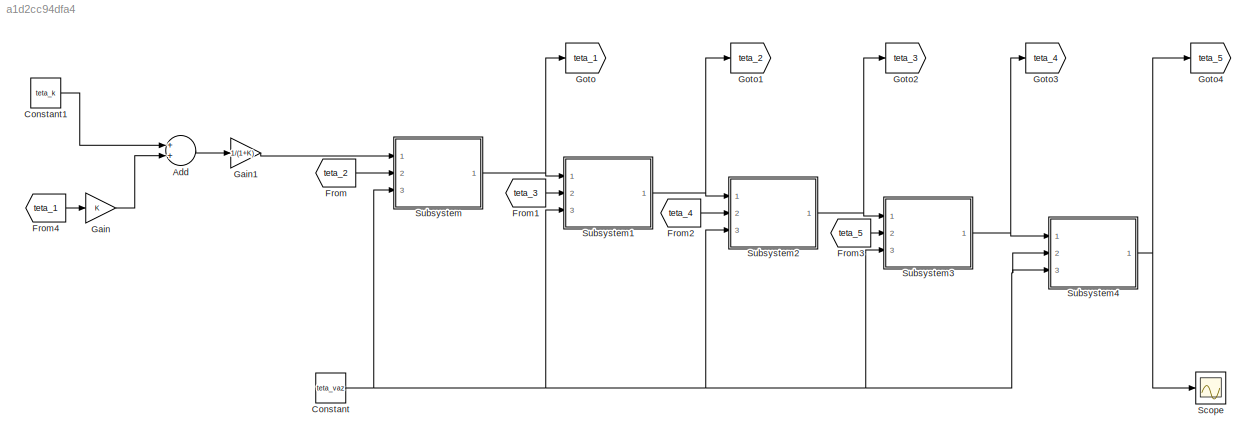
MODEL slx_a1d2cc94dfa4
KIND model
CONFIG AbsTol = auto
CONFIG FixedStep = auto
CONFIG MaxStep = auto
CONFIG MinStep = auto
CONFIG RelTol = 1e-3
CONFIG SampleTimeConstraint = Unconstrained
CONFIG Solver = ode45
CONFIG SolverMode = Auto
CONFIG SolverName = ode45
CONFIG StartTime = 0.0
CONFIG StopTime = 500
BLOCK [Sum] Add
  InputSameDT = off
  OutDataTypeStr = Inherit: Inherit via internal rule
  Ports = [2, 1]
  SaturateOnIntegerOverflow = off
BLOCK [Constant] Constant
  Value = teta_vaz
BLOCK [Constant] Constant1
  Value = teta_k
BLOCK [From] From
  GotoTag = teta_2
BLOCK [From] From1
  GotoTag = teta_3
BLOCK [From] From2
  GotoTag = teta_4
BLOCK [From] From3
  GotoTag = teta_5
BLOCK [From] From4
  GotoTag = teta_1
BLOCK [Gain] Gain
  Gain = K
  OutDataTypeStr = Inherit: Inherit via internal rule
  ParamDataTypeStr = Inherit: Inherit via internal rule
  SaturateOnIntegerOverflow = off
BLOCK [Gain] Gain1
  Gain = 1/(1+K)
  OutDataTypeStr = Inherit: Inherit via internal rule
  ParamDataTypeStr = Inherit: Inherit via internal rule
  SaturateOnIntegerOverflow = off
BLOCK [Goto] Goto
  GotoTag = teta_1
BLOCK [Goto] Goto1
  GotoTag = teta_2
BLOCK [Goto] Goto2
  GotoTag = teta_3
BLOCK [Goto] Goto3
  GotoTag = teta_4
BLOCK [Goto] Goto4
  GotoTag = teta_5
BLOCK [Scope] Scope
  DataFormat = StructureWithTime
  Floating = off
  LimitDataPoints = off
  NumInputPorts = 1
  Ports = [1]
  SampleTime = 0
  TimeRange = 500
  YMax = 65
  YMin = 30
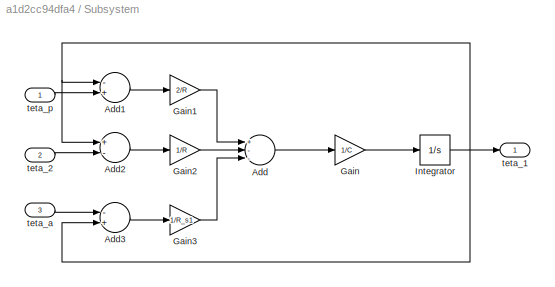
BLOCK [SubSystem] Subsystem
  Ports = [3, 1]
  RequestExecContextInheritance = off
BLOCK [Sum] Subsystem/Add
  InputSameDT = off
  Inputs = +--
  OutDataTypeStr = Inherit: Inherit via internal rule
  Ports = [3, 1]
  SaturateOnIntegerOverflow = off
BLOCK [Sum] Subsystem/Add1
  InputSameDT = off
  Inputs = -+
  OutDataTypeStr = Inherit: Inherit via internal rule
  Ports = [2, 1]
  SaturateOnIntegerOverflow = off
BLOCK [Sum] Subsystem/Add2
  InputSameDT = off
  Inputs = +-
  OutDataTypeStr = Inherit: Inherit via internal rule
  Ports = [2, 1]
  SaturateOnIntegerOverflow = off
BLOCK [Sum] Subsystem/Add3
  InputSameDT = off
  Inputs = -+
  OutDataTypeStr = Inherit: Inherit via internal rule
  Ports = [2, 1]
  SaturateOnIntegerOverflow = off
BLOCK [Gain] Subsystem/Gain
  Gain = 1/C
  OutDataTypeStr = Inherit: Inherit via internal rule
  ParamDataTypeStr = Inherit: Inherit via internal rule
  SaturateOnIntegerOverflow = off
BLOCK [Gain] Subsystem/Gain1
  Gain = 2/R
  OutDataTypeStr = Inherit: Inherit via internal rule
  ParamDataTypeStr = Inherit: Inherit via internal rule
  SaturateOnIntegerOverflow = off
BLOCK [Gain] Subsystem/Gain2
  Gain = 1/R
  OutDataTypeStr = Inherit: Inherit via internal rule
  ParamDataTypeStr = Inherit: Inherit via internal rule
  SaturateOnIntegerOverflow = off
BLOCK [Gain] Subsystem/Gain3
  Gain = 1/R_s1
  OutDataTypeStr = Inherit: Inherit via internal rule
  ParamDataTypeStr = Inherit: Inherit via internal rule
  SaturateOnIntegerOverflow = off
BLOCK [Integrator] Subsystem/Integrator
  InitialCondition = teta_vaz
  Ports = [1, 1]
BLOCK [Outport] Subsystem/teta_1
  IconDisplay = Port number
BLOCK [Inport] Subsystem/teta_2
  IconDisplay = Port number
  Port = 2
BLOCK [Inport] Subsystem/teta_a 
  IconDisplay = Port number
  Port = 3
BLOCK [Inport] Subsystem/teta_p
  IconDisplay = Port number
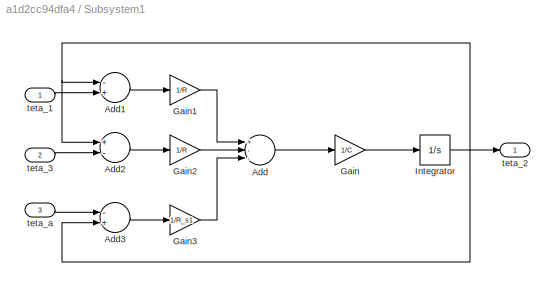
BLOCK [SubSystem] Subsystem1
  Ports = [3, 1]
  RequestExecContextInheritance = off
BLOCK [Sum] Subsystem1/Add
  InputSameDT = off
  Inputs = +--
  OutDataTypeStr = Inherit: Inherit via internal rule
  Ports = [3, 1]
  SaturateOnIntegerOverflow = off
BLOCK [Sum] Subsystem1/Add1
  InputSameDT = off
  Inputs = -+
  OutDataTypeStr = Inherit: Inherit via internal rule
  Ports = [2, 1]
  SaturateOnIntegerOverflow = off
BLOCK [Sum] Subsystem1/Add2
  InputSameDT = off
  Inputs = +-
  OutDataTypeStr = Inherit: Inherit via internal rule
  Ports = [2, 1]
  SaturateOnIntegerOverflow = off
BLOCK [Sum] Subsystem1/Add3
  InputSameDT = off
  Inputs = -+
  OutDataTypeStr = Inherit: Inherit via internal rule
  Ports = [2, 1]
  SaturateOnIntegerOverflow = off
BLOCK [Gain] Subsystem1/Gain
  Gain = 1/C
  OutDataTypeStr = Inherit: Inherit via internal rule
  ParamDataTypeStr = Inherit: Inherit via internal rule
  SaturateOnIntegerOverflow = off
BLOCK [Gain] Subsystem1/Gain1
  Gain = 1/R
  OutDataTypeStr = Inherit: Inherit via internal rule
  ParamDataTypeStr = Inherit: Inherit via internal rule
  SaturateOnIntegerOverflow = off
BLOCK [Gain] Subsystem1/Gain2
  Gain = 1/R
  OutDataTypeStr = Inherit: Inherit via internal rule
  ParamDataTypeStr = Inherit: Inherit via internal rule
  SaturateOnIntegerOverflow = off
BLOCK [Gain] Subsystem1/Gain3
  Gain = 1/R_s1
  OutDataTypeStr = Inherit: Inherit via internal rule
  ParamDataTypeStr = Inherit: Inherit via internal rule
  SaturateOnIntegerOverflow = off
BLOCK [Integrator] Subsystem1/Integrator
  InitialCondition = teta_vaz
  Ports = [1, 1]
BLOCK [Inport] Subsystem1/teta_1
  IconDisplay = Port number
BLOCK [Outport] Subsystem1/teta_2
  IconDisplay = Port number
BLOCK [Inport] Subsystem1/teta_3
  IconDisplay = Port number
  Port = 2
BLOCK [Inport] Subsystem1/teta_a 
  IconDisplay = Port number
  Port = 3
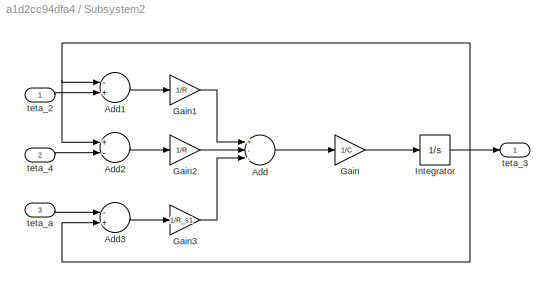
BLOCK [SubSystem] Subsystem2
  Ports = [3, 1]
  RequestExecContextInheritance = off
BLOCK [Sum] Subsystem2/Add
  InputSameDT = off
  Inputs = +--
  OutDataTypeStr = Inherit: Inherit via internal rule
  Ports = [3, 1]
  SaturateOnIntegerOverflow = off
BLOCK [Sum] Subsystem2/Add1
  InputSameDT = off
  Inputs = -+
  OutDataTypeStr = Inherit: Inherit via internal rule
  Ports = [2, 1]
  SaturateOnIntegerOverflow = off
BLOCK [Sum] Subsystem2/Add2
  InputSameDT = off
  Inputs = +-
  OutDataTypeStr = Inherit: Inherit via internal rule
  Ports = [2, 1]
  SaturateOnIntegerOverflow = off
BLOCK [Sum] Subsystem2/Add3
  InputSameDT = off
  Inputs = -+
  OutDataTypeStr = Inherit: Inherit via internal rule
  Ports = [2, 1]
  SaturateOnIntegerOverflow = off
BLOCK [Gain] Subsystem2/Gain
  Gain = 1/C
  OutDataTypeStr = Inherit: Inherit via internal rule
  ParamDataTypeStr = Inherit: Inherit via internal rule
  SaturateOnIntegerOverflow = off
BLOCK [Gain] Subsystem2/Gain1
  Gain = 1/R
  OutDataTypeStr = Inherit: Inherit via internal rule
  ParamDataTypeStr = Inherit: Inherit via internal rule
  SaturateOnIntegerOverflow = off
BLOCK [Gain] Subsystem2/Gain2
  Gain = 1/R
  OutDataTypeStr = Inherit: Inherit via internal rule
  ParamDataTypeStr = Inherit: Inherit via internal rule
  SaturateOnIntegerOverflow = off
BLOCK [Gain] Subsystem2/Gain3
  Gain = 1/R_s1
  OutDataTypeStr = Inherit: Inherit via internal rule
  ParamDataTypeStr = Inherit: Inherit via internal rule
  SaturateOnIntegerOverflow = off
BLOCK [Integrator] Subsystem2/Integrator
  InitialCondition = teta_vaz
  Ports = [1, 1]
BLOCK [Inport] Subsystem2/teta_2
  IconDisplay = Port number
BLOCK [Outport] Subsystem2/teta_3
  IconDisplay = Port number
BLOCK [Inport] Subsystem2/teta_4
  IconDisplay = Port number
  Port = 2
BLOCK [Inport] Subsystem2/teta_a 
  IconDisplay = Port number
  Port = 3
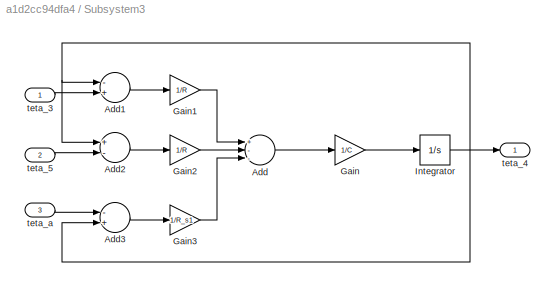
BLOCK [SubSystem] Subsystem3
  Ports = [3, 1]
  RequestExecContextInheritance = off
BLOCK [Sum] Subsystem3/Add
  InputSameDT = off
  Inputs = +--
  OutDataTypeStr = Inherit: Inherit via internal rule
  Ports = [3, 1]
  SaturateOnIntegerOverflow = off
BLOCK [Sum] Subsystem3/Add1
  InputSameDT = off
  Inputs = -+
  OutDataTypeStr = Inherit: Inherit via internal rule
  Ports = [2, 1]
  SaturateOnIntegerOverflow = off
BLOCK [Sum] Subsystem3/Add2
  InputSameDT = off
  Inputs = +-
  OutDataTypeStr = Inherit: Inherit via internal rule
  Ports = [2, 1]
  SaturateOnIntegerOverflow = off
BLOCK [Sum] Subsystem3/Add3
  InputSameDT = off
  Inputs = -+
  OutDataTypeStr = Inherit: Inherit via internal rule
  Ports = [2, 1]
  SaturateOnIntegerOverflow = off
BLOCK [Gain] Subsystem3/Gain
  Gain = 1/C
  OutDataTypeStr = Inherit: Inherit via internal rule
  ParamDataTypeStr = Inherit: Inherit via internal rule
  SaturateOnIntegerOverflow = off
BLOCK [Gain] Subsystem3/Gain1
  Gain = 1/R
  OutDataTypeStr = Inherit: Inherit via internal rule
  ParamDataTypeStr = Inherit: Inherit via internal rule
  SaturateOnIntegerOverflow = off
BLOCK [Gain] Subsystem3/Gain2
  Gain = 1/R
  OutDataTypeStr = Inherit: Inherit via internal rule
  ParamDataTypeStr = Inherit: Inherit via internal rule
  SaturateOnIntegerOverflow = off
BLOCK [Gain] Subsystem3/Gain3
  Gain = 1/R_s1
  OutDataTypeStr = Inherit: Inherit via internal rule
  ParamDataTypeStr = Inherit: Inherit via internal rule
  SaturateOnIntegerOverflow = off
BLOCK [Integrator] Subsystem3/Integrator
  InitialCondition = teta_vaz
  Ports = [1, 1]
BLOCK [Inport] Subsystem3/teta_3
  IconDisplay = Port number
BLOCK [Outport] Subsystem3/teta_4
  IconDisplay = Port number
BLOCK [Inport] Subsystem3/teta_5
  IconDisplay = Port number
  Port = 2
BLOCK [Inport] Subsystem3/teta_a 
  IconDisplay = Port number
  Port = 3
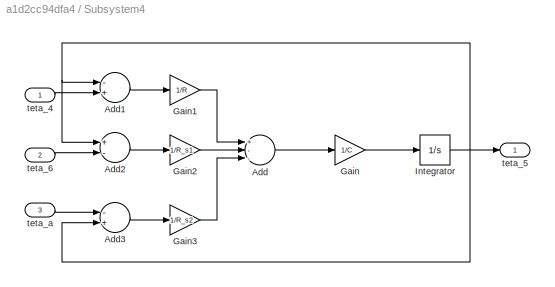
BLOCK [SubSystem] Subsystem4
  Ports = [3, 1]
  RequestExecContextInheritance = off
BLOCK [Sum] Subsystem4/Add
  InputSameDT = off
  Inputs = +--
  OutDataTypeStr = Inherit: Inherit via internal rule
  Ports = [3, 1]
  SaturateOnIntegerOverflow = off
BLOCK [Sum] Subsystem4/Add1
  InputSameDT = off
  Inputs = -+
  OutDataTypeStr = Inherit: Inherit via internal rule
  Ports = [2, 1]
  SaturateOnIntegerOverflow = off
BLOCK [Sum] Subsystem4/Add2
  InputSameDT = off
  Inputs = +-
  OutDataTypeStr = Inherit: Inherit via internal rule
  Ports = [2, 1]
  SaturateOnIntegerOverflow = off
BLOCK [Sum] Subsystem4/Add3
  InputSameDT = off
  Inputs = -+
  OutDataTypeStr = Inherit: Inherit via internal rule
  Ports = [2, 1]
  SaturateOnIntegerOverflow = off
BLOCK [Gain] Subsystem4/Gain
  Gain = 1/C
  OutDataTypeStr = Inherit: Inherit via internal rule
  ParamDataTypeStr = Inherit: Inherit via internal rule
  SaturateOnIntegerOverflow = off
BLOCK [Gain] Subsystem4/Gain1
  Gain = 1/R
  OutDataTypeStr = Inherit: Inherit via internal rule
  ParamDataTypeStr = Inherit: Inherit via internal rule
  SaturateOnIntegerOverflow = off
BLOCK [Gain] Subsystem4/Gain2
  Gain = 1/R_s1
  OutDataTypeStr = Inherit: Inherit via internal rule
  ParamDataTypeStr = Inherit: Inherit via internal rule
  SaturateOnIntegerOverflow = off
BLOCK [Gain] Subsystem4/Gain3
  Gain = 1/R_s2
  OutDataTypeStr = Inherit: Inherit via internal rule
  ParamDataTypeStr = Inherit: Inherit via internal rule
  SaturateOnIntegerOverflow = off
BLOCK [Integrator] Subsystem4/Integrator
  InitialCondition = teta_vaz
  Ports = [1, 1]
BLOCK [Inport] Subsystem4/teta_4
  IconDisplay = Port number
BLOCK [Outport] Subsystem4/teta_5
  IconDisplay = Port number
BLOCK [Inport] Subsystem4/teta_6
  IconDisplay = Port number
  Port = 2
BLOCK [Inport] Subsystem4/teta_a 
  IconDisplay = Port number
  Port = 3
LINE Add:1 -> Gain1:1
LINE Constant1:1 -> Add:1
NET Constant:1 -> Subsystem1:3, Subsystem2:3, Subsystem3:3, Subsystem4:2, Subsystem4:3, Subsystem:3
LINE From1:1 -> Subsystem1:2
LINE From2:1 -> Subsystem2:2
LINE From3:1 -> Subsystem3:2
LINE From4:1 -> Gain:1
LINE From:1 -> Subsystem:2
LINE Gain1:1 -> Subsystem:1
LINE Gain:1 -> Add:2
LINE Subsystem/Add1:1 -> Subsystem/Gain1:1
LINE Subsystem/Add2:1 -> Subsystem/Gain2:1
LINE Subsystem/Add3:1 -> Subsystem/Gain3:1
LINE Subsystem/Add:1 -> Subsystem/Gain:1
LINE Subsystem/Gain1:1 -> Subsystem/Add:1
LINE Subsystem/Gain2:1 -> Subsystem/Add:2
LINE Subsystem/Gain3:1 -> Subsystem/Add:3
LINE Subsystem/Gain:1 -> Subsystem/Integrator:1
NET Subsystem/Integrator:1 -> Subsystem/Add1:1, Subsystem/Add2:1, Subsystem/Add3:2, Subsystem/teta_1:1
LINE Subsystem/teta_2:1 -> Subsystem/Add2:2
LINE Subsystem/teta_a :1 -> Subsystem/Add3:1
LINE Subsystem/teta_p:1 -> Subsystem/Add1:2
LINE Subsystem1/Add1:1 -> Subsystem1/Gain1:1
LINE Subsystem1/Add2:1 -> Subsystem1/Gain2:1
LINE Subsystem1/Add3:1 -> Subsystem1/Gain3:1
LINE Subsystem1/Add:1 -> Subsystem1/Gain:1
LINE Subsystem1/Gain1:1 -> Subsystem1/Add:1
LINE Subsystem1/Gain2:1 -> Subsystem1/Add:2
LINE Subsystem1/Gain3:1 -> Subsystem1/Add:3
LINE Subsystem1/Gain:1 -> Subsystem1/Integrator:1
NET Subsystem1/Integrator:1 -> Subsystem1/Add1:1, Subsystem1/Add2:1, Subsystem1/Add3:2, Subsystem1/teta_2:1
LINE Subsystem1/teta_1:1 -> Subsystem1/Add1:2
LINE Subsystem1/teta_3:1 -> Subsystem1/Add2:2
LINE Subsystem1/teta_a :1 -> Subsystem1/Add3:1
NET Subsystem1:1 -> Goto1:1, Subsystem2:1
LINE Subsystem2/Add1:1 -> Subsystem2/Gain1:1
LINE Subsystem2/Add2:1 -> Subsystem2/Gain2:1
LINE Subsystem2/Add3:1 -> Subsystem2/Gain3:1
LINE Subsystem2/Add:1 -> Subsystem2/Gain:1
LINE Subsystem2/Gain1:1 -> Subsystem2/Add:1
LINE Subsystem2/Gain2:1 -> Subsystem2/Add:2
LINE Subsystem2/Gain3:1 -> Subsystem2/Add:3
LINE Subsystem2/Gain:1 -> Subsystem2/Integrator:1
NET Subsystem2/Integrator:1 -> Subsystem2/Add1:1, Subsystem2/Add2:1, Subsystem2/Add3:2, Subsystem2/teta_3:1
LINE Subsystem2/teta_2:1 -> Subsystem2/Add1:2
LINE Subsystem2/teta_4:1 -> Subsystem2/Add2:2
LINE Subsystem2/teta_a :1 -> Subsystem2/Add3:1
NET Subsystem2:1 -> Goto2:1, Subsystem3:1
LINE Subsystem3/Add1:1 -> Subsystem3/Gain1:1
LINE Subsystem3/Add2:1 -> Subsystem3/Gain2:1
LINE Subsystem3/Add3:1 -> Subsystem3/Gain3:1
LINE Subsystem3/Add:1 -> Subsystem3/Gain:1
LINE Subsystem3/Gain1:1 -> Subsystem3/Add:1
LINE Subsystem3/Gain2:1 -> Subsystem3/Add:2
LINE Subsystem3/Gain3:1 -> Subsystem3/Add:3
LINE Subsystem3/Gain:1 -> Subsystem3/Integrator:1
NET Subsystem3/Integrator:1 -> Subsystem3/Add1:1, Subsystem3/Add2:1, Subsystem3/Add3:2, Subsystem3/teta_4:1
LINE Subsystem3/teta_3:1 -> Subsystem3/Add1:2
LINE Subsystem3/teta_5:1 -> Subsystem3/Add2:2
LINE Subsystem3/teta_a :1 -> Subsystem3/Add3:1
NET Subsystem3:1 -> Goto3:1, Subsystem4:1
LINE Subsystem4/Add1:1 -> Subsystem4/Gain1:1
LINE Subsystem4/Add2:1 -> Subsystem4/Gain2:1
LINE Subsystem4/Add3:1 -> Subsystem4/Gain3:1
LINE Subsystem4/Add:1 -> Subsystem4/Gain:1
LINE Subsystem4/Gain1:1 -> Subsystem4/Add:1
LINE Subsystem4/Gain2:1 -> Subsystem4/Add:2
LINE Subsystem4/Gain3:1 -> Subsystem4/Add:3
LINE Subsystem4/Gain:1 -> Subsystem4/Integrator:1
NET Subsystem4/Integrator:1 -> Subsystem4/Add1:1, Subsystem4/Add2:1, Subsystem4/Add3:2, Subsystem4/teta_5:1
LINE Subsystem4/teta_4:1 -> Subsystem4/Add1:2
LINE Subsystem4/teta_6:1 -> Subsystem4/Add2:2
LINE Subsystem4/teta_a :1 -> Subsystem4/Add3:1
NET Subsystem4:1 -> Goto4:1, Scope:1
NET Subsystem:1 -> Goto:1, Subsystem1:1
note: NET lines group one-source signal fan-out (src -> all destinations, sorted); 1:1 wires keep LINE
